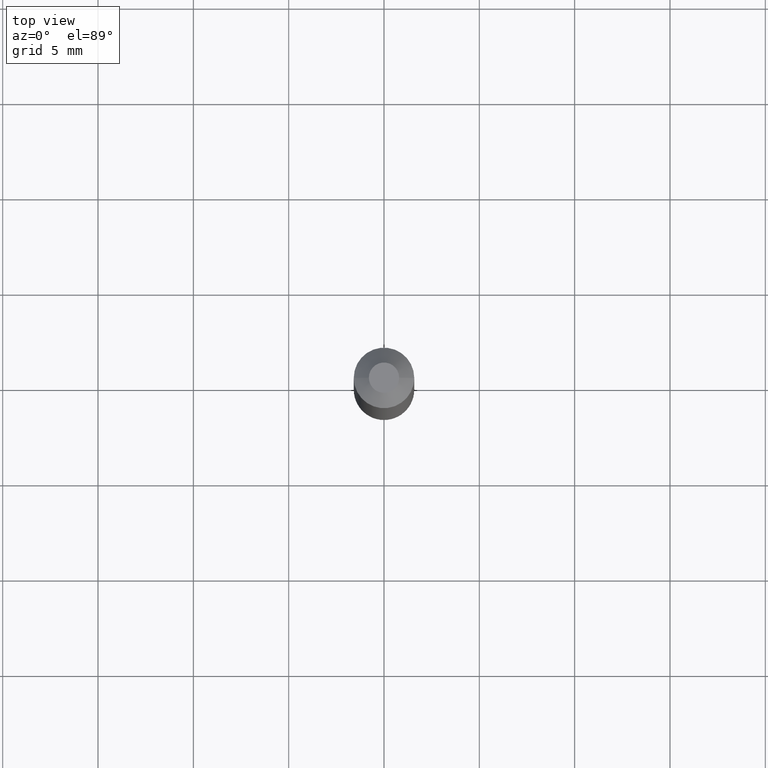
[diagram: clean part render]
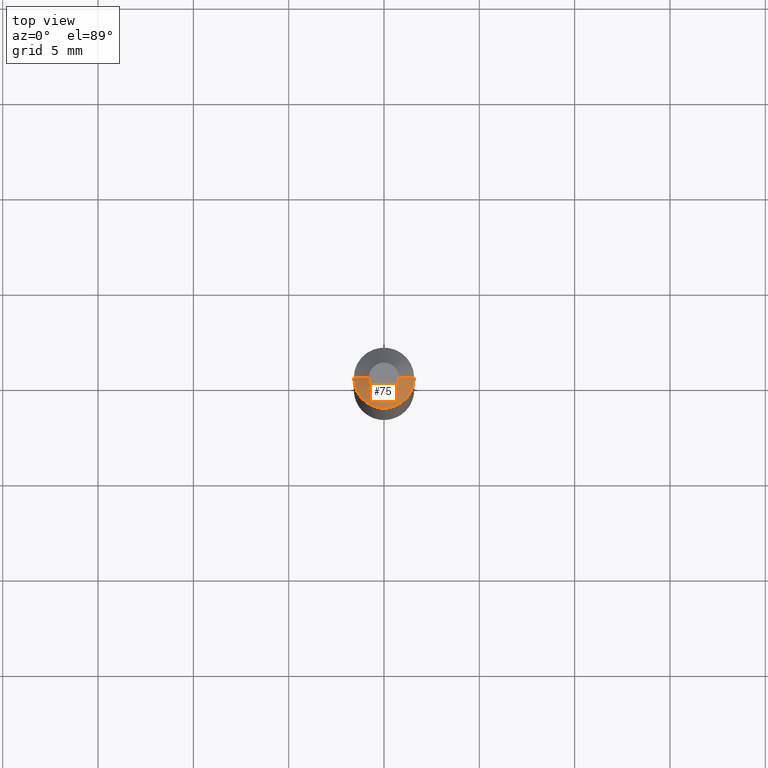
[diagram: same view with one face highlighted and labeled with its STEP entity id]
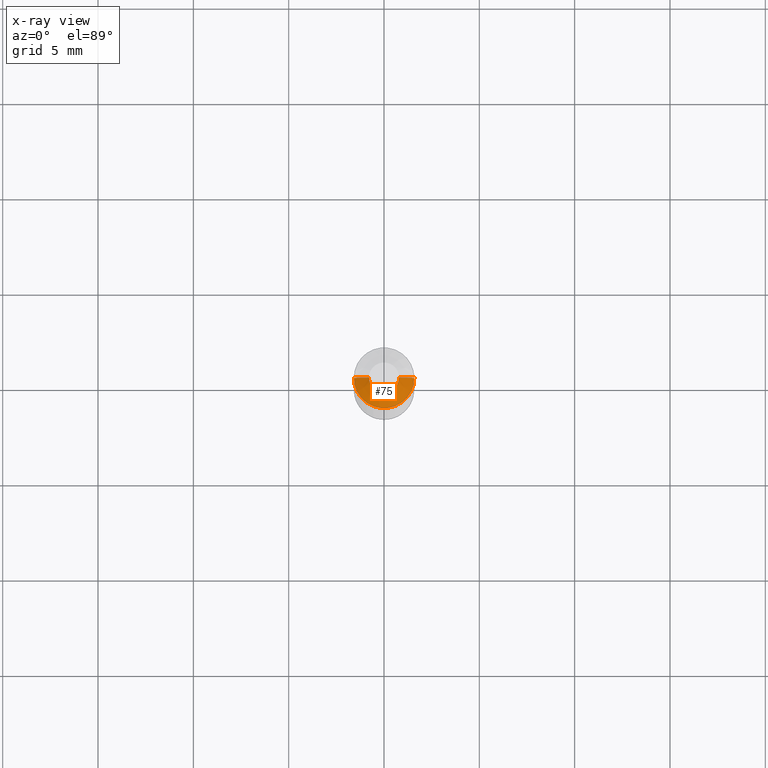
[diagram: x-ray of the same camera — body ghosted, the highlighted face saturated]
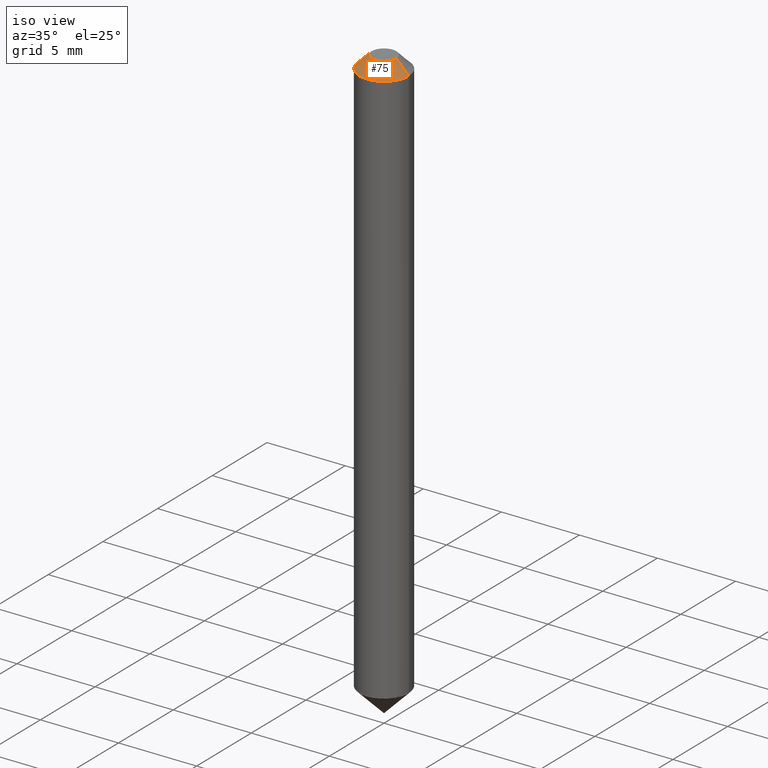
[diagram: same view with one face highlighted and labeled with its STEP entity id]
A machine part, top view. The second image highlights one B-rep face of the part: STEP entity #75.
The next image is the same camera in x-ray: the body ghosted, the highlighted face saturated — about 0% of this face is hidden behind the body in this view.
A second angle (iso view) of the same face is appended — the face is thin or edge-on in the first view.
In plain terms, the highlighted conical surface has half-angle 45 deg.
Its self-contained STEP definition (entity closure, byte-faithful):
#2 = CARTESIAN_POINT ( 'NONE',  ( 0.06250000000000001388, -5.377153426326275743E-16, -0.03120000000000019286 ) ) ;
#14 = VERTEX_POINT ( 'NONE', #349 ) ;
#36 = CARTESIAN_POINT ( 'NONE',  ( 1.871772216193329603E-46, -2.672394653685609529E-32, -7.654042494670960626E-18 ) ) ;
#43 = DIRECTION ( 'NONE',  ( 0.7071067811865454633, -7.319954787623248157E-15, -0.7071067811865495711 ) ) ;
#67 = CARTESIAN_POINT ( 'NONE',  ( -0.03130000000000000143, 2.730338406975325259E-16, -7.654042494672678556E-18 ) ) ;
#69 = FACE_OUTER_BOUND ( 'NONE', #197, .T. ) ;
#71 = CONICAL_SURFACE ( 'NONE', #297, 0.06250000000000001388, 0.7853981633974453924 ) ;
#75 = ADVANCED_FACE ( 'NONE', ( #69 ), #71, .T. ) ;
#113 = CIRCLE ( 'NONE', #169, 0.03130000000000000143 ) ;
#131 = CARTESIAN_POINT ( 'NONE',  ( -0.06250000000000001388, 3.275009495834849163E-16, -0.03120000000000019286 ) ) ;
#140 = ORIENTED_EDGE ( 'NONE', *, *, #153, .F. ) ;
#150 = DIRECTION ( 'NONE',  ( 1.000000000000000000, -6.982962677686265922E-15, 0.000000000000000000 ) ) ;
#153 = EDGE_CURVE ( 'NONE', #14, #182, #158, .T. ) ;
#158 = LINE ( 'NONE', #2, #292 ) ;
#169 = AXIS2_PLACEMENT_3D ( 'NONE', #36, #367, #360 ) ;
#181 = CIRCLE ( 'NONE', #237, 0.06250000000000001388 ) ;
#182 = VERTEX_POINT ( 'NONE', #368 ) ;
#191 = CARTESIAN_POINT ( 'NONE',  ( 7.629862675297673947E-31, -1.089342177719068147E-16, -0.03120000000000019286 ) ) ;
#197 = EDGE_LOOP ( 'NONE', ( #140, #375, #341, #358 ) ) ;
#209 = DIRECTION ( 'NONE',  ( -2.445468806185136597E-29, 3.491481338843145583E-15, 1.000000000000000000 ) ) ;
#222 = DIRECTION ( 'NONE',  ( -0.7071067811865454633, 2.468850131082235367E-15, -0.7071067811865495711 ) ) ;
#225 = DIRECTION ( 'NONE',  ( -1.000000000000000000, 6.982962677686265922E-15, 0.000000000000000000 ) ) ;
#233 = CARTESIAN_POINT ( 'NONE',  ( -0.06250000000000001388, -2.118134370659977963E-15, -0.03120000000000019286 ) ) ;
#237 = AXIS2_PLACEMENT_3D ( 'NONE', #354, #209, #150 ) ;
#285 = VERTEX_POINT ( 'NONE', #67 ) ;
#292 = VECTOR ( 'NONE', #43, 39.37007874015748143 ) ;
#295 = EDGE_CURVE ( 'NONE', #353, #182, #181, .T. ) ;
#297 = AXIS2_PLACEMENT_3D ( 'NONE', #191, #364, #225 ) ;
#300 = VECTOR ( 'NONE', #222, 39.37007874015748143 ) ;
#341 = ORIENTED_EDGE ( 'NONE', *, *, #379, .T. ) ;
#348 = LINE ( 'NONE', #131, #300 ) ;
#349 = CARTESIAN_POINT ( 'NONE',  ( 0.03130000000000000143, -3.762244649814383124E-16, -7.654042494668882163E-18 ) ) ;
#353 = VERTEX_POINT ( 'NONE', #233 ) ;
#354 = CARTESIAN_POINT ( 'NONE',  ( 7.629862675297673947E-31, -1.089342177719068147E-16, -0.03120000000000019286 ) ) ;
#358 = ORIENTED_EDGE ( 'NONE', *, *, #295, .T. ) ;
#360 = DIRECTION ( 'NONE',  ( 1.000000000000000000, -6.982962677686266711E-15, 4.875266047494795291E-29 ) ) ;
#364 = DIRECTION ( 'NONE',  ( 2.445468806185136597E-29, -3.491481338843145583E-15, -1.000000000000000000 ) ) ;
#367 = DIRECTION ( 'NONE',  ( -2.445468806185136597E-29, 3.491481338843145583E-15, 1.000000000000000000 ) ) ;
#368 = CARTESIAN_POINT ( 'NONE',  ( 0.06250000000000001388, -5.453693851272985211E-16, -0.03120000000000019286 ) ) ;
#375 = ORIENTED_EDGE ( 'NONE', *, *, #383, .F. ) ;
#379 = EDGE_CURVE ( 'NONE', #285, #353, #348, .T. ) ;
#383 = EDGE_CURVE ( 'NONE', #285, #14, #113, .T. ) ;